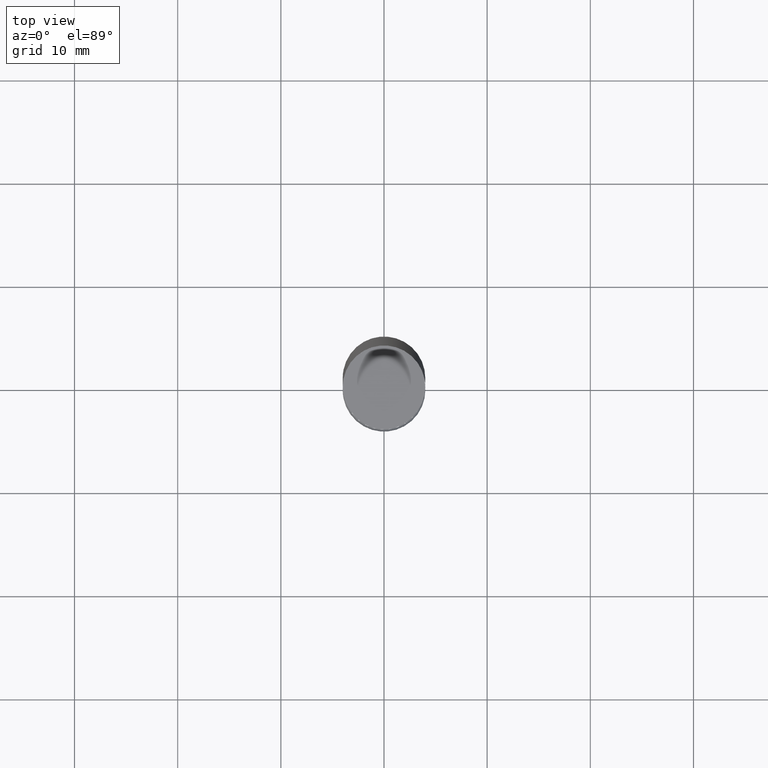
[diagram: clean part render]
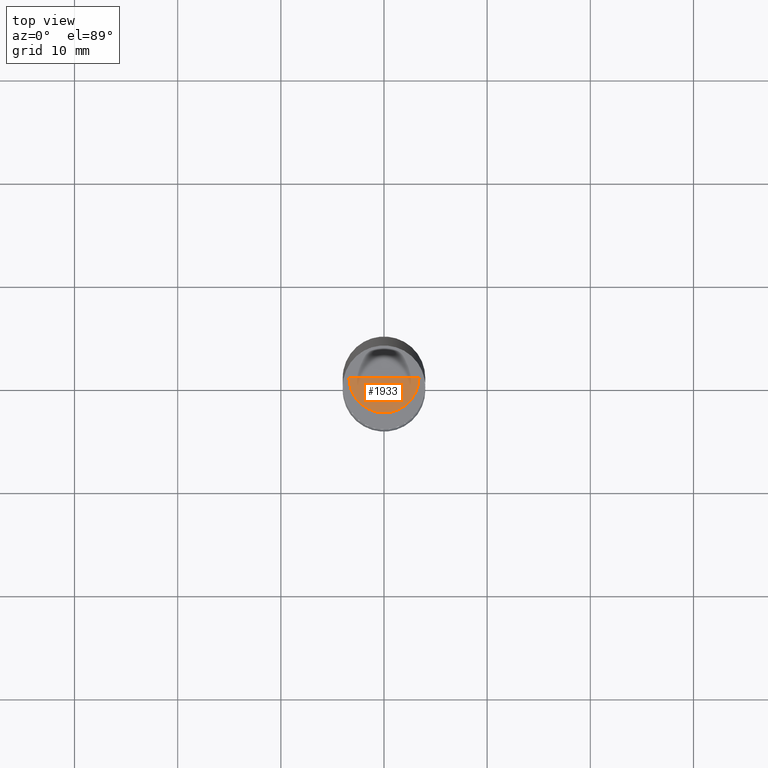
[diagram: same view with one face highlighted and labeled with its STEP entity id]
A machine part, top view. The second image highlights one B-rep face of the part: STEP entity #1933.
In plain terms, the highlighted face is a freeform B-spline surface patch.
Its self-contained STEP definition (entity closure, byte-faithful):
#1621=CARTESIAN_POINT('',(3.4,0.0,50.0));
#1625=CARTESIAN_POINT('',(-3.4,0.0,50.0));
#1626=CARTESIAN_POINT('',(0.0,0.0,50.0));
#1630=CARTESIAN_POINT('',(-3.4,-3.4,50.0));
#1631=CARTESIAN_POINT('',(0.0,-3.4,50.0));
#1632=CARTESIAN_POINT('',(3.4,-3.4,50.0));
#1918=(
BOUNDED_SURFACE()
B_SPLINE_SURFACE(1,2,(
(#1625,#1630,#1631,#1632,#1621),
(#1626,#1626,#1626,#1626,#1626)
), .UNSPECIFIED.,.F.,.F.,.F.)
B_SPLINE_SURFACE_WITH_KNOTS((2,2),(3,2,3),(
0.0,1.0),(
0.0,0.5,1.0), .UNSPECIFIED.)
GEOMETRIC_REPRESENTATION_ITEM()
RATIONAL_B_SPLINE_SURFACE(((1.0,0.707106781187,1.0,0.707106781187,1.0),
(1.0,0.707106781187,1.0,0.707106781187,1.0)
))
REPRESENTATION_ITEM('')
SURFACE()
);
#1919=(
BOUNDED_CURVE()
B_SPLINE_CURVE(1,(#1626,#1621),.UNSPECIFIED.,.F.,.F.)
B_SPLINE_CURVE_WITH_KNOTS((2,2),
(0.0,1.0),.UNSPECIFIED.)
CURVE()
GEOMETRIC_REPRESENTATION_ITEM()
RATIONAL_B_SPLINE_CURVE((1.0,1.0))
REPRESENTATION_ITEM('')
);
#1920=(
BOUNDED_CURVE()
B_SPLINE_CURVE(2,(#1621,#1632,#1631,#1630,#1625),.UNSPECIFIED.,.F.,.F.)
B_SPLINE_CURVE_WITH_KNOTS((3,2,3),
(0.0,0.5,1.0),.UNSPECIFIED.)
CURVE()
GEOMETRIC_REPRESENTATION_ITEM()
RATIONAL_B_SPLINE_CURVE((1.0,0.707106781187,1.0,0.707106781187,1.0))
REPRESENTATION_ITEM('')
);
#1921=(
BOUNDED_CURVE()
B_SPLINE_CURVE(1,(#1625,#1626),.UNSPECIFIED.,.F.,.F.)
B_SPLINE_CURVE_WITH_KNOTS((2,2),
(0.0,1.0),.UNSPECIFIED.)
CURVE()
GEOMETRIC_REPRESENTATION_ITEM()
RATIONAL_B_SPLINE_CURVE((1.0,1.0))
REPRESENTATION_ITEM('')
);
#1922=VERTEX_POINT('',#1621);
#1923=VERTEX_POINT('',#1625);
#1924=VERTEX_POINT('',#1626);
#1925=EDGE_CURVE('',#1924,#1922,#1919,.T.);
#1926=EDGE_CURVE('',#1922,#1923,#1920,.T.);
#1927=EDGE_CURVE('',#1923,#1924,#1921,.T.);
#1928=ORIENTED_EDGE('',*,*,#1925,.T.);
#1929=ORIENTED_EDGE('',*,*,#1926,.T.);
#1930=ORIENTED_EDGE('',*,*,#1927,.T.);
#1931=EDGE_LOOP('',(#1928,#1929,#1930));
#1932=FACE_OUTER_BOUND('',#1931,.T.);
#1933=ADVANCED_FACE('',(#1932),#1918,.T.);